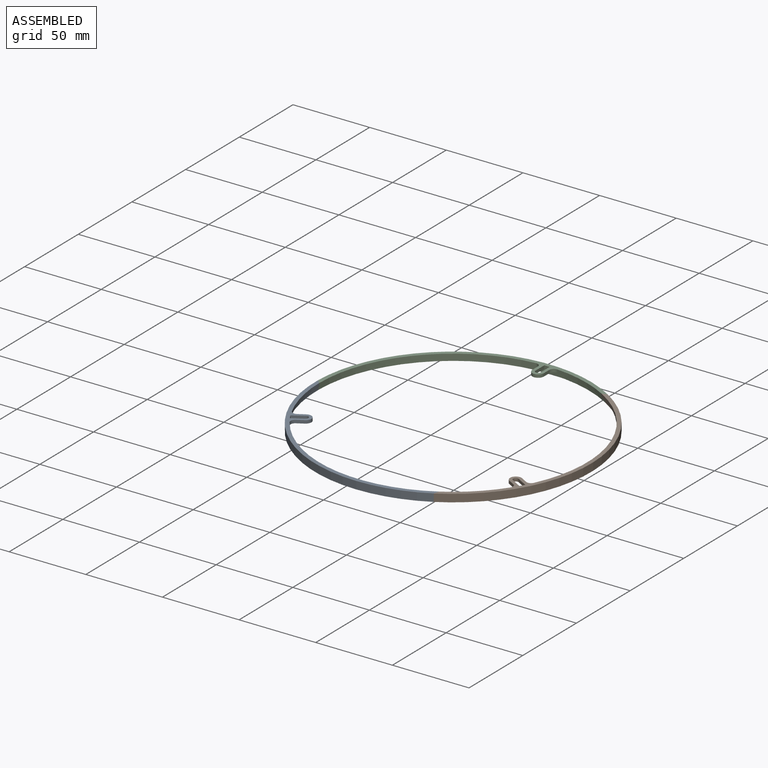
[diagram: assembled view]
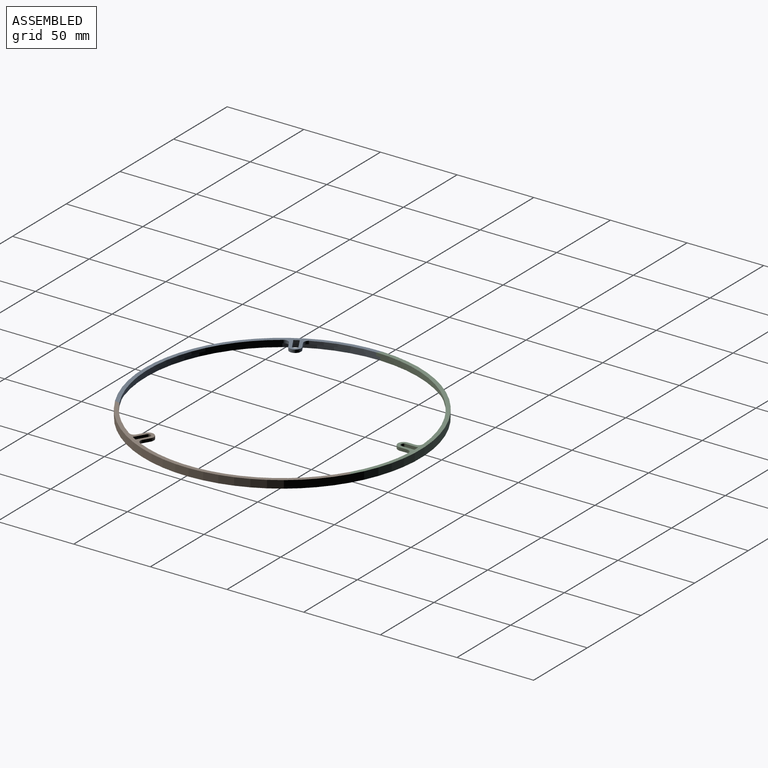
[diagram: assembled view, second angle]
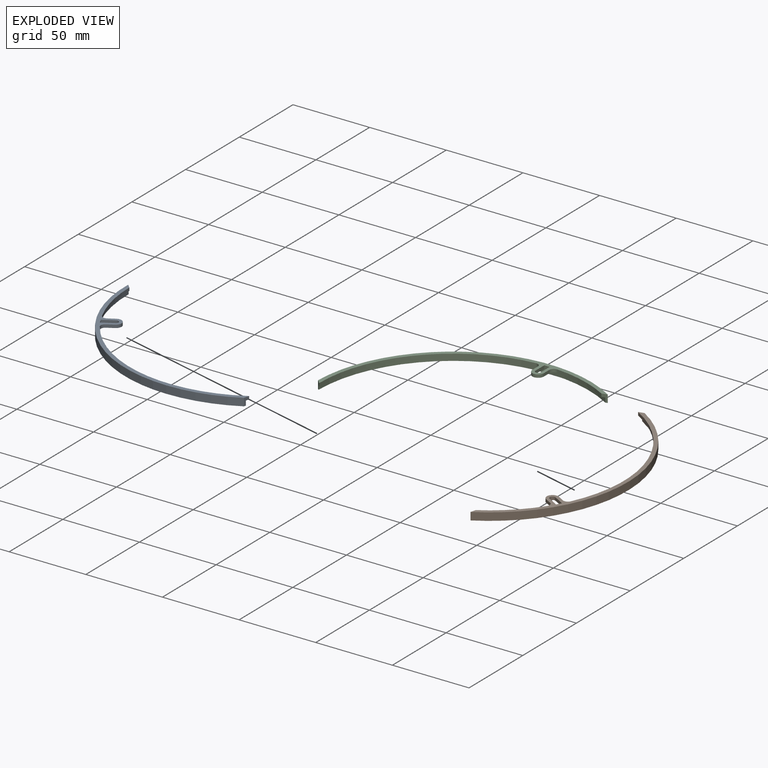
[diagram: exploded view]
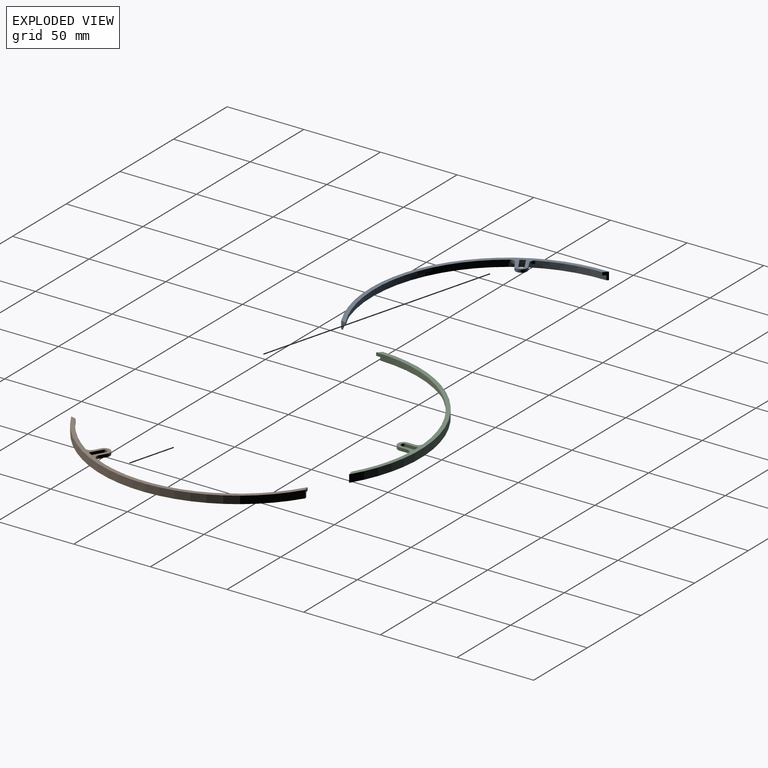
[diagram: exploded view, second angle]
ASSEMBLY  parts=3 mates=2
PART A: 18 faces, bbox 137.2x90x5 mm
  f0: plane 5x3.5mm, normal (0.26,-0.97,0), area 11.4mm2, adj f2,f8,f9,f15,f16,f17
  f1: plane 5x2.56mm, normal (-0.71,-0.71,0), area 11.4mm2, adj f2,f9,f10,f15,f16,f17
  f2: plane 137.17x88.41mm, normal (0,0,-1), area 187.4mm2, adj f0,f1,f9,f17
  f3: plane 3.5x2mm, normal (0,-1,0), area 7mm2, adj f4,f14,f15,f16
  f4: plane 8.25x2mm, normal (-1,0,0), area 16.5mm2, adj f3,f5,f15,f16
  f5: cylinder r=1.75mm len=3.5mm, axis (0,0,-1), area 11mm2, adj f4,f14,f15,f16
  f6: plane 4.98x2mm, normal (1,0,0), area 10mm2, adj f7,f13,f15,f16
  f7: cylinder r=3mm len=3.24mm, axis (0,0,-1), area 9.9mm2, adj f6,f8,f15,f16
  f8: cylinder r=87.4mm len=36.71mm, axis (0,0,-1), area 77.5mm2, adj f0,f7,f15,f16
  f9: cylinder r=90mm len=137.17mm, axis (0,0,-1), area 942.5mm2, adj f0,f1,f2,f15
  f10: cylinder r=87.4mm len=87.12mm, axis (0,0,-1), area 260.6mm2, adj f1,f11,f15,f16
  f11: cylinder r=3mm len=3.24mm, axis (0,0,-1), area 9.9mm2, adj f10,f12,f15,f16
  f12: plane 4.98x2mm, normal (-1,0,0), area 10mm2, adj f11,f13,f15,f16
  f13: cylinder r=3.75mm len=7.5mm, axis (0,0,-1), area 23.6mm2, adj f6,f12,f15,f16
  f14: plane 8.25x2mm, normal (1,0,0), area 16.5mm2, adj f3,f5,f15,f16
  f15: plane 137.17x90mm, normal (0,0,1), area 537.6mm2, adj f0,f1,f3,f4,f5,f6,f7,f8
  f16: plane 134.85x89mm, normal (0,0,-1), area 350.2mm2, adj f0,f1,f3,f4,f5,f6,f7,f8
  f17: cylinder r=89mm len=134.85mm, axis (0,0,-1), area 559.2mm2, adj f0,f1,f2,f16
PART B: same geometry as A
PART C: same geometry as A
PLACE A rot(axis=(0,0,1),120deg) t=(11.65,-45.78,4.98)mm
PLACE B rot(axis=(0,0,-1),120deg) t=(11.65,-45.78,4.98)mm
PLACE C t=(11.65,-45.78,4.98)mm
MATE planar B.f1 <-> C.f0  axis (-0.26,0.97,0) through (57.49,30.48,8.07)mm
MATE planar A.f1 <-> B.f0  axis (0.97,-0.26,0) through (54.77,-123.62,8.07)mm
